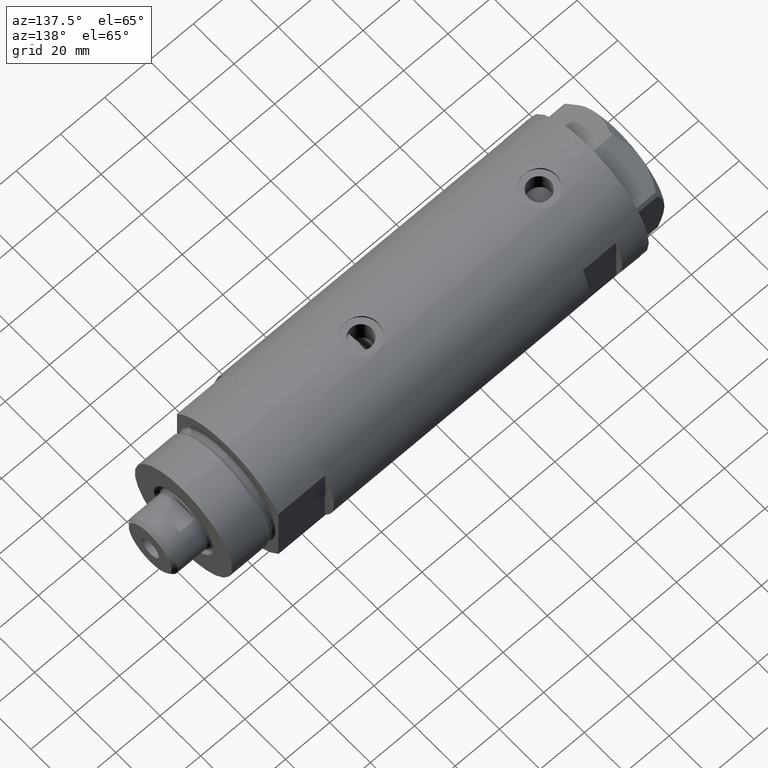
[diagram: clean part render]
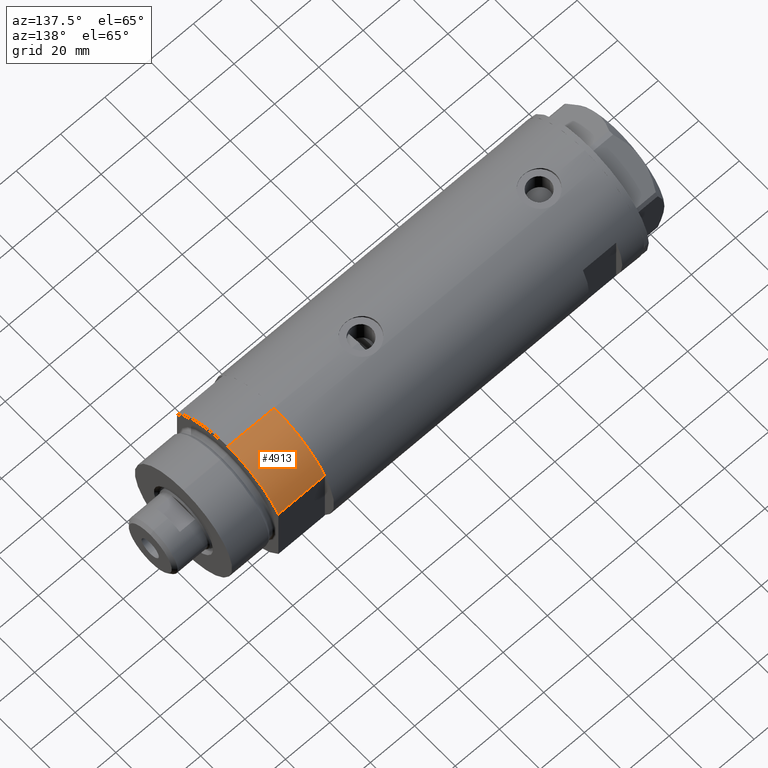
[diagram: same view with one face highlighted and labeled with its STEP entity id]
A machine part, auxiliary view. The second image highlights one B-rep face of the part: STEP entity #4913.
In plain terms, the highlighted cylindrical surface (partial cylindrical patch) has radius 29.5 mm, axis along (-1, -0, 0).
Its self-contained STEP definition (entity closure, byte-faithful):
#143 = EDGE_CURVE ( 'NONE', #1849, #268, #5867, .T. ) ;
#268 = VERTEX_POINT ( 'NONE', #2147 ) ;
#487 = FACE_OUTER_BOUND ( 'NONE', #1382, .T. ) ;
#564 = CARTESIAN_POINT ( 'NONE',  ( -29.50000000000000355, 0.000000000000000000, 0.000000000000000000 ) ) ;
#648 = VERTEX_POINT ( 'NONE', #564 ) ;
#786 = ORIENTED_EDGE ( 'NONE', *, *, #2605, .T. ) ;
#929 = ORIENTED_EDGE ( 'NONE', *, *, #1994, .F. ) ;
#963 = CIRCLE ( 'NONE', #2595, 29.50000000000000355 ) ;
#994 = EDGE_CURVE ( 'NONE', #268, #5593, #963, .T. ) ;
#1000 = CARTESIAN_POINT ( 'NONE',  ( 0.000000000000000000, 0.000000000000000000, 0.000000000000000000 ) ) ;
#1060 = LINE ( 'NONE', #2052, #3627 ) ;
#1356 = CYLINDRICAL_SURFACE ( 'NONE', #2561, 29.50000000000000355 ) ;
#1382 = EDGE_LOOP ( 'NONE', ( #929, #5314, #3716, #786 ) ) ;
#1849 = VERTEX_POINT ( 'NONE', #2708 ) ;
#1904 = DIRECTION ( 'NONE',  ( 1.000000000000000000, 0.000000000000000000, 0.000000000000000000 ) ) ;
#1908 = DIRECTION ( 'NONE',  ( -0.000000000000000000, -0.000000000000000000, -1.000000000000000000 ) ) ;
#1994 = EDGE_CURVE ( 'NONE', #5593, #648, #1060, .T. ) ;
#2052 = CARTESIAN_POINT ( 'NONE',  ( -29.50000000000000355, 0.000000000000000000, 21.00000000000000000 ) ) ;
#2110 = VECTOR ( 'NONE', #2666, 1000.000000000000000 ) ;
#2129 = CARTESIAN_POINT ( 'NONE',  ( -29.50000000000000355, 0.000000000000000000, 21.00000000000000000 ) ) ;
#2147 = CARTESIAN_POINT ( 'NONE',  ( -15.66045976336583045, 24.99999999999999645, 21.00000000000000355 ) ) ;
#2475 = DIRECTION ( 'NONE',  ( 0.000000000000000000, 0.000000000000000000, 1.000000000000000000 ) ) ;
#2561 = AXIS2_PLACEMENT_3D ( 'NONE', #3592, #1908, #3662 ) ;
#2595 = AXIS2_PLACEMENT_3D ( 'NONE', #2665, #4481, #4546 ) ;
#2605 = EDGE_CURVE ( 'NONE', #1849, #648, #4981, .T. ) ;
#2665 = CARTESIAN_POINT ( 'NONE',  ( 0.000000000000000000, 0.000000000000000000, 21.00000000000000000 ) ) ;
#2666 = DIRECTION ( 'NONE',  ( -0.000000000000000000, -0.000000000000000000, 1.000000000000000000 ) ) ;
#2708 = CARTESIAN_POINT ( 'NONE',  ( -15.66045976336583401, 25.00000000000000000, 0.000000000000000000 ) ) ;
#3488 = CARTESIAN_POINT ( 'NONE',  ( -15.66045976336583401, 25.00000000000000000, 0.000000000000000000 ) ) ;
#3592 = CARTESIAN_POINT ( 'NONE',  ( 0.000000000000000000, 0.000000000000000000, 21.00000000000000000 ) ) ;
#3627 = VECTOR ( 'NONE', #3863, 1000.000000000000000 ) ;
#3662 = DIRECTION ( 'NONE',  ( -1.000000000000000000, 0.000000000000000000, 0.000000000000000000 ) ) ;
#3716 = ORIENTED_EDGE ( 'NONE', *, *, #143, .F. ) ;
#3739 = AXIS2_PLACEMENT_3D ( 'NONE', #1000, #2475, #1904 ) ;
#3863 = DIRECTION ( 'NONE',  ( -0.000000000000000000, -0.000000000000000000, -1.000000000000000000 ) ) ;
#4481 = DIRECTION ( 'NONE',  ( 0.000000000000000000, 0.000000000000000000, 1.000000000000000000 ) ) ;
#4546 = DIRECTION ( 'NONE',  ( 1.000000000000000000, 0.000000000000000000, 0.000000000000000000 ) ) ;
#4913 = ADVANCED_FACE ( 'NONE', ( #487 ), #1356, .T. ) ;
#4981 = CIRCLE ( 'NONE', #3739, 29.50000000000000355 ) ;
#5314 = ORIENTED_EDGE ( 'NONE', *, *, #994, .F. ) ;
#5593 = VERTEX_POINT ( 'NONE', #2129 ) ;
#5867 = LINE ( 'NONE', #3488, #2110 ) ;